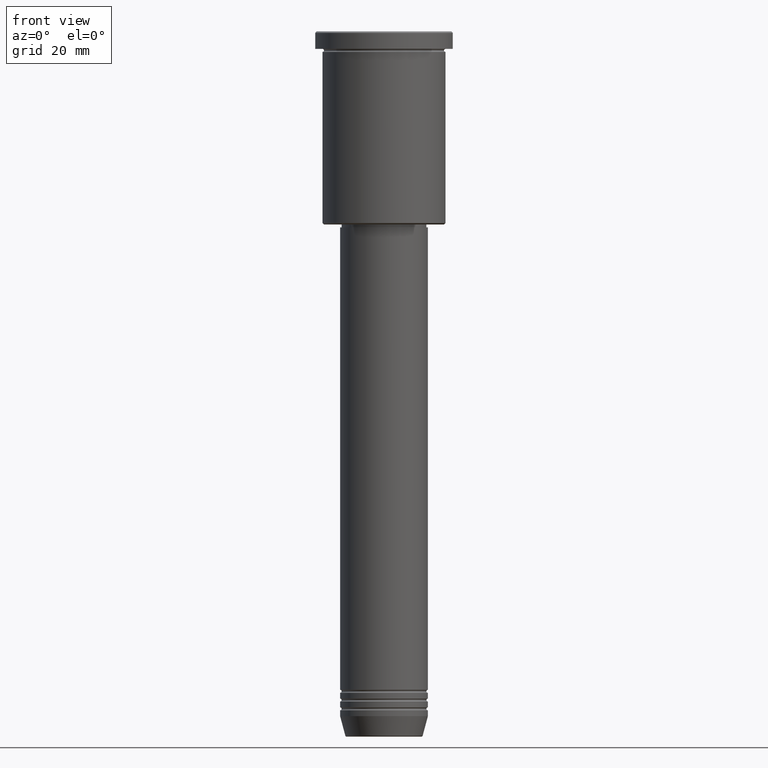
[diagram: clean part render]
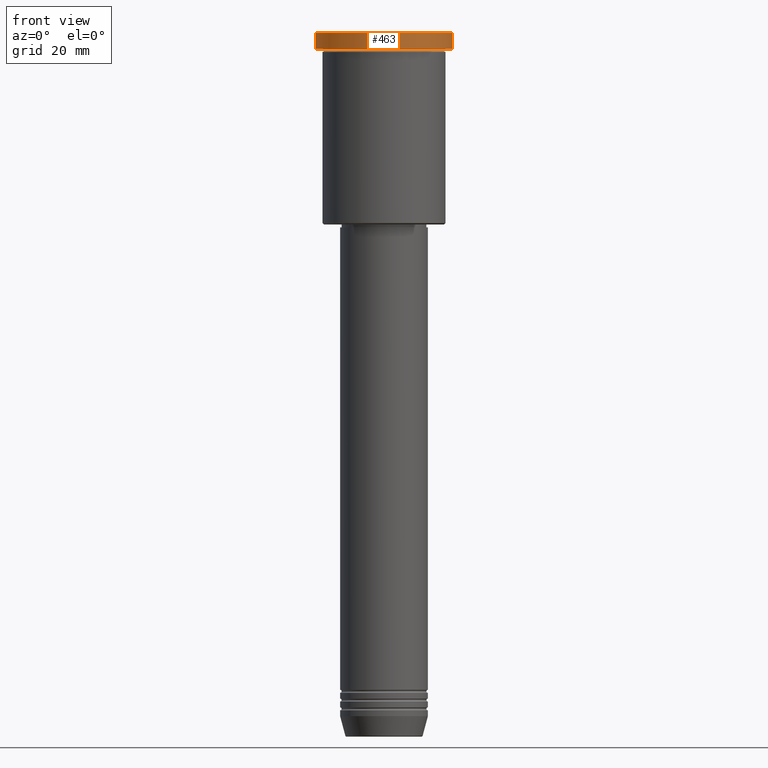
[diagram: same view with one face highlighted and labeled with its STEP entity id]
A machine part, front view. The second image highlights one B-rep face of the part: STEP entity #463.
In plain terms, the highlighted cylindrical surface (partial cylindrical patch) has radius 23.5 mm, axis along (-0, -0, 1).
Its self-contained STEP definition (entity closure, byte-faithful):
#19 = VERTEX_POINT ( 'NONE', #395 ) ;
#46 = DIRECTION ( 'NONE',  ( -0.000000000000000000, -0.000000000000000000, 1.000000000000000000 ) ) ;
#59 = CARTESIAN_POINT ( 'NONE',  ( 0.000000000000000000, 0.000000000000000000, -5.999999999999994671 ) ) ;
#90 = DIRECTION ( 'NONE',  ( -0.000000000000000000, -0.000000000000000000, 1.000000000000000000 ) ) ;
#91 = CARTESIAN_POINT ( 'NONE',  ( 23.50000000000000000, 0.000000000000000000, 0.000000000000000000 ) ) ;
#103 = ORIENTED_EDGE ( 'NONE', *, *, #764, .T. ) ;
#109 = VERTEX_POINT ( 'NONE', #638 ) ;
#117 = EDGE_CURVE ( 'NONE', #19, #729, #892, .T. ) ;
#222 = VECTOR ( 'NONE', #681, 1000.000000000000000 ) ;
#311 = CARTESIAN_POINT ( 'NONE',  ( 0.000000000000000000, 0.000000000000000000, -0.5000000000000281997 ) ) ;
#395 = CARTESIAN_POINT ( 'NONE',  ( 23.50000000000000000, 0.000000000000000000, -5.999999999999994671 ) ) ;
#408 = DIRECTION ( 'NONE',  ( 1.000000000000000000, 0.000000000000000000, 0.000000000000000000 ) ) ;
#416 = DIRECTION ( 'NONE',  ( 0.000000000000000000, 0.000000000000000000, -1.000000000000000000 ) ) ;
#446 = DIRECTION ( 'NONE',  ( -0.000000000000000000, -0.000000000000000000, 1.000000000000000000 ) ) ;
#463 = ADVANCED_FACE ( 'NONE', ( #819 ), #722, .T. ) ;
#535 = CARTESIAN_POINT ( 'NONE',  ( 0.000000000000000000, 0.000000000000000000, 0.000000000000000000 ) ) ;
#565 = AXIS2_PLACEMENT_3D ( 'NONE', #59, #46, #1061 ) ;
#616 = VERTEX_POINT ( 'NONE', #1127 ) ;
#638 = CARTESIAN_POINT ( 'NONE',  ( -23.50000000000000000, 2.877919977996280320E-15, -0.5000000000000281997 ) ) ;
#668 = CIRCLE ( 'NONE', #565, 23.50000000000000000 ) ;
#681 = DIRECTION ( 'NONE',  ( -0.000000000000000000, -0.000000000000000000, 1.000000000000000000 ) ) ;
#708 = EDGE_CURVE ( 'NONE', #616, #109, #1159, .T. ) ;
#722 = CYLINDRICAL_SURFACE ( 'NONE', #1057, 23.50000000000000000 ) ;
#726 = DIRECTION ( 'NONE',  ( 1.000000000000000000, 0.000000000000000000, 0.000000000000000000 ) ) ;
#729 = VERTEX_POINT ( 'NONE', #1047 ) ;
#764 = EDGE_CURVE ( 'NONE', #729, #109, #1097, .T. ) ;
#780 = CARTESIAN_POINT ( 'NONE',  ( -23.50000000000000000, 2.877919977996280320E-15, 0.000000000000000000 ) ) ;
#819 = FACE_OUTER_BOUND ( 'NONE', #947, .T. ) ;
#827 = ORIENTED_EDGE ( 'NONE', *, *, #117, .T. ) ;
#831 = ORIENTED_EDGE ( 'NONE', *, *, #708, .F. ) ;
#856 = VECTOR ( 'NONE', #446, 1000.000000000000000 ) ;
#892 = LINE ( 'NONE', #91, #856 ) ;
#947 = EDGE_LOOP ( 'NONE', ( #831, #1010, #827, #103 ) ) ;
#1010 = ORIENTED_EDGE ( 'NONE', *, *, #1183, .T. ) ;
#1047 = CARTESIAN_POINT ( 'NONE',  ( 23.50000000000000000, 0.000000000000000000, -0.5000000000000281997 ) ) ;
#1057 = AXIS2_PLACEMENT_3D ( 'NONE', #535, #90, #726 ) ;
#1061 = DIRECTION ( 'NONE',  ( 1.000000000000000000, 0.000000000000000000, 0.000000000000000000 ) ) ;
#1095 = AXIS2_PLACEMENT_3D ( 'NONE', #311, #416, #408 ) ;
#1097 = CIRCLE ( 'NONE', #1095, 23.50000000000000000 ) ;
#1127 = CARTESIAN_POINT ( 'NONE',  ( -23.50000000000000000, 2.877919977996280320E-15, -5.999999999999994671 ) ) ;
#1159 = LINE ( 'NONE', #780, #222 ) ;
#1183 = EDGE_CURVE ( 'NONE', #616, #19, #668, .T. ) ;